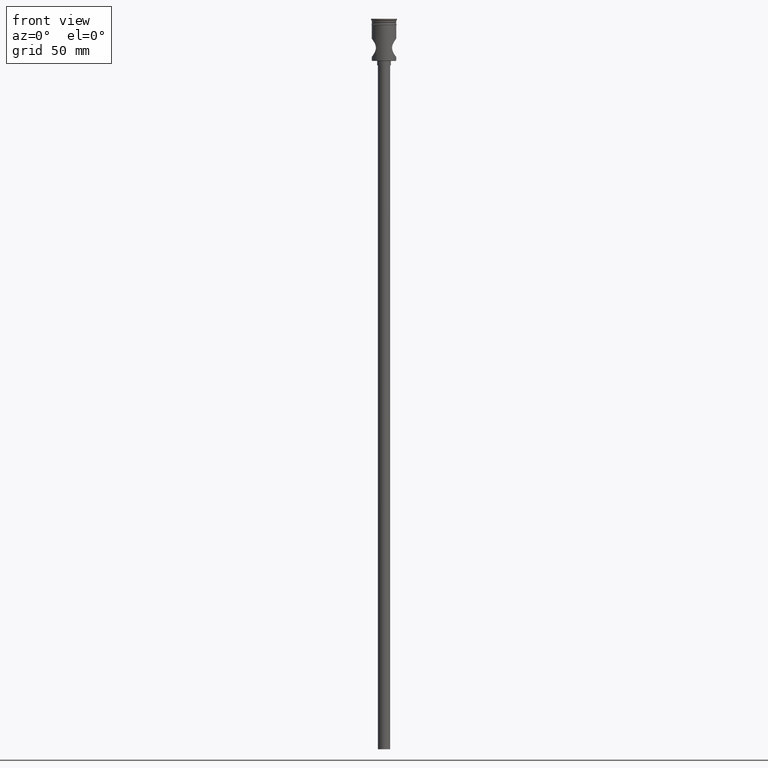
[diagram: clean part render]
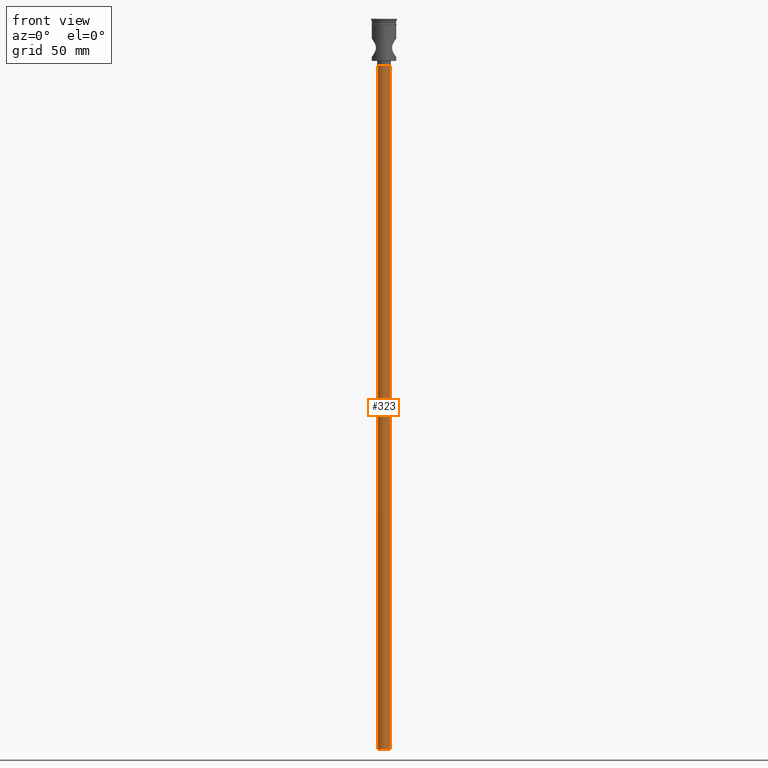
[diagram: same view with one face highlighted and labeled with its STEP entity id]
A machine part, front view. The second image highlights one B-rep face of the part: STEP entity #323.
In plain terms, the highlighted cylindrical surface (edge-blend (fillet) strip) has radius 4 mm, axis along (-0, -0, 1).
Its self-contained STEP definition (entity closure, byte-faithful):
#30 = FACE_OUTER_BOUND ( 'NONE', #1047, .T. ) ;
#74 = CARTESIAN_POINT ( 'NONE',  ( 4.000000000000000000, 0.000000000000000000, -30.50000000000000000 ) ) ;
#126 = ORIENTED_EDGE ( 'NONE', *, *, #366, .F. ) ;
#153 = AXIS2_PLACEMENT_3D ( 'NONE', #1102, #1116, #968 ) ;
#196 = VERTEX_POINT ( 'NONE', #1064 ) ;
#203 = DIRECTION ( 'NONE',  ( 0.000000000000000000, 0.000000000000000000, -1.000000000000000000 ) ) ;
#206 = CARTESIAN_POINT ( 'NONE',  ( -4.000000000000000000, 4.898587196589412829E-16, -477.5000000000000568 ) ) ;
#213 = DIRECTION ( 'NONE',  ( -1.000000000000000000, 0.000000000000000000, 0.000000000000000000 ) ) ;
#320 = DIRECTION ( 'NONE',  ( -1.000000000000000000, 0.000000000000000000, 0.000000000000000000 ) ) ;
#323 = ADVANCED_FACE ( 'NONE', ( #30 ), #418, .T. ) ;
#366 = EDGE_CURVE ( 'NONE', #1222, #196, #535, .T. ) ;
#411 = DIRECTION ( 'NONE',  ( -0.000000000000000000, -0.000000000000000000, 1.000000000000000000 ) ) ;
#418 = CYLINDRICAL_SURFACE ( 'NONE', #153, 4.000000000000000000 ) ;
#448 = CARTESIAN_POINT ( 'NONE',  ( 4.000000000000000000, 0.000000000000000000, -477.5000000000000568 ) ) ;
#505 = VECTOR ( 'NONE', #411, 1000.000000000000000 ) ;
#510 = EDGE_CURVE ( 'NONE', #617, #1222, #1414, .T. ) ;
#535 = LINE ( 'NONE', #1330, #505 ) ;
#544 = EDGE_CURVE ( 'NONE', #728, #196, #677, .T. ) ;
#617 = VERTEX_POINT ( 'NONE', #448 ) ;
#649 = LINE ( 'NONE', #654, #1316 ) ;
#654 = CARTESIAN_POINT ( 'NONE',  ( 4.000000000000000000, 0.000000000000000000, -477.5000000000000568 ) ) ;
#666 = CARTESIAN_POINT ( 'NONE',  ( 0.000000000000000000, 0.000000000000000000, -477.5000000000000568 ) ) ;
#677 = CIRCLE ( 'NONE', #1313, 4.000000000000000000 ) ;
#688 = CARTESIAN_POINT ( 'NONE',  ( 0.000000000000000000, 0.000000000000000000, -30.50000000000000000 ) ) ;
#691 = EDGE_CURVE ( 'NONE', #617, #728, #649, .T. ) ;
#728 = VERTEX_POINT ( 'NONE', #74 ) ;
#747 = AXIS2_PLACEMENT_3D ( 'NONE', #666, #1134, #213 ) ;
#809 = ORIENTED_EDGE ( 'NONE', *, *, #510, .F. ) ;
#968 = DIRECTION ( 'NONE',  ( 1.000000000000000000, 0.000000000000000000, 0.000000000000000000 ) ) ;
#1047 = EDGE_LOOP ( 'NONE', ( #126, #809, #1171, #1082 ) ) ;
#1064 = CARTESIAN_POINT ( 'NONE',  ( -4.000000000000000000, 4.898587196589412829E-16, -30.50000000000000000 ) ) ;
#1082 = ORIENTED_EDGE ( 'NONE', *, *, #544, .T. ) ;
#1102 = CARTESIAN_POINT ( 'NONE',  ( 0.000000000000000000, 0.000000000000000000, -477.5000000000000568 ) ) ;
#1113 = DIRECTION ( 'NONE',  ( -0.000000000000000000, -0.000000000000000000, 1.000000000000000000 ) ) ;
#1116 = DIRECTION ( 'NONE',  ( -0.000000000000000000, -0.000000000000000000, 1.000000000000000000 ) ) ;
#1134 = DIRECTION ( 'NONE',  ( 0.000000000000000000, 0.000000000000000000, -1.000000000000000000 ) ) ;
#1171 = ORIENTED_EDGE ( 'NONE', *, *, #691, .T. ) ;
#1222 = VERTEX_POINT ( 'NONE', #206 ) ;
#1313 = AXIS2_PLACEMENT_3D ( 'NONE', #688, #203, #320 ) ;
#1316 = VECTOR ( 'NONE', #1113, 1000.000000000000000 ) ;
#1330 = CARTESIAN_POINT ( 'NONE',  ( -4.000000000000000000, 4.898587196589412829E-16, -477.5000000000000568 ) ) ;
#1414 = CIRCLE ( 'NONE', #747, 4.000000000000000000 ) ;